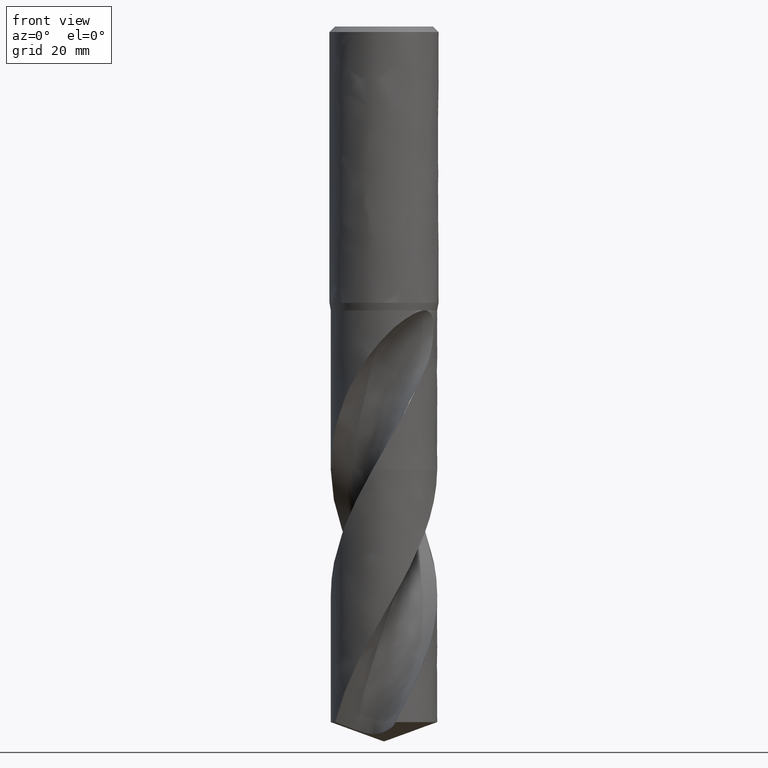
[diagram: clean part render]
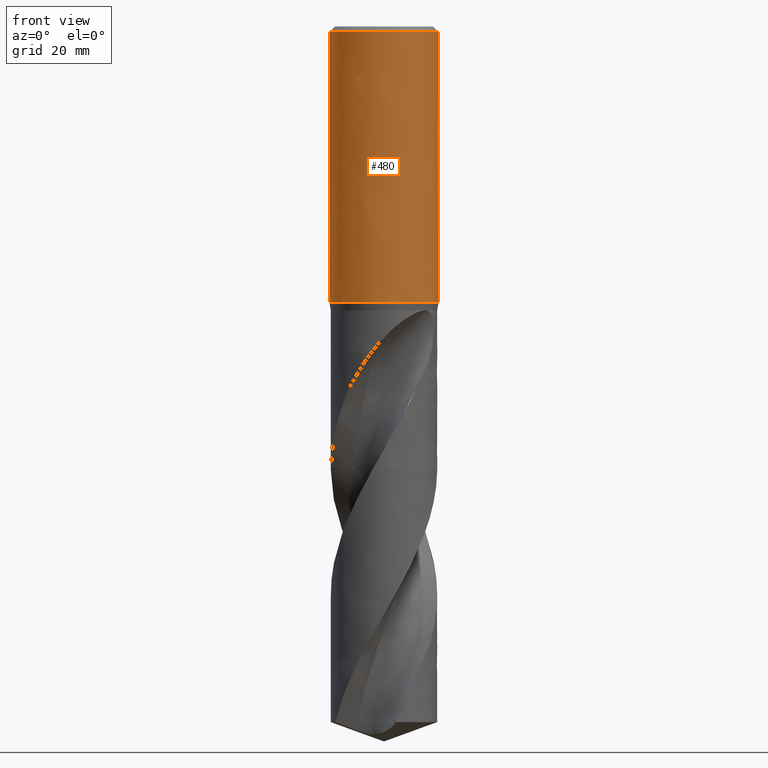
[diagram: same view with one face highlighted and labeled with its STEP entity id]
A machine part, front view. The second image highlights one B-rep face of the part: STEP entity #480.
In plain terms, the highlighted face is a freeform B-spline surface patch.
Its self-contained STEP definition (entity closure, byte-faithful):
#331 = VERTEX_POINT('', #332);
#332 = CARTESIAN_POINT('', (-10., 3.71116966013614E-15, -50.608));
#338 = EDGE_CURVE('', #331, #331, #339, .T.);
#339 = CIRCLE('', #340, 10.);
#340 = AXIS2_PLACEMENT_3D('', #341, #342, #343);
#341 = CARTESIAN_POINT('', (1.89749607702378E-31, 3.09884626056246E-15, -50.608));
#342 = DIRECTION('', (3.74939945665464E-33, 6.12323399573677E-17, -1.));
#343 = DIRECTION('', (-1., 6.12323399573677E-17, 0.));
#429 = VERTEX_POINT('', #430);
#430 = CARTESIAN_POINT('', (-10., 6.73555739531044E-16, -1.));
#446 = EDGE_CURVE('', #429, #429, #447, .T.);
#447 = CIRCLE('', #448, 10.);
#448 = AXIS2_PLACEMENT_3D('', #449, #450, #451);
#449 = CARTESIAN_POINT('', (3.74939945665462E-33, 6.12323399573676E-17, -1.));
#450 = DIRECTION('', (3.74939945665464E-33, 6.12323399573677E-17, -1.));
#451 = DIRECTION('', (-1., 6.12323399573677E-17, 0.));
#480 = ADVANCED_FACE('', (#481, #492), #684, .T.);
#481 = FACE_OUTER_BOUND('', #482, .T.);
#482 = EDGE_LOOP('', (#483, #489, #490, #491));
#483 = ORIENTED_EDGE('', *, *, #484, .T.);
#484 = EDGE_CURVE('', #331, #429, #485, .T.);
#485 = LINE('', #486, #487);
#486 = CARTESIAN_POINT('', (-10., 3.71116966013614E-15, -50.608));
#487 = VECTOR('', #488, 49.608);
#488 = DIRECTION('', (0., -3.0376139206051E-15, 49.608));
#489 = ORIENTED_EDGE('', *, *, #446, .T.);
#490 = ORIENTED_EDGE('', *, *, #484, .F.);
#491 = ORIENTED_EDGE('', *, *, #338, .F.);
#492 = FACE_BOUND('', #493, .T.);
#493 = EDGE_LOOP('', (#494, #586, #594, #678));
#494 = ORIENTED_EDGE('', *, *, #495, .F.);
#495 = EDGE_CURVE('', #496, #498, #500, .T.);
#496 = VERTEX_POINT('', #497);
#497 = CARTESIAN_POINT('', (-5.72363520850167, 8.2, -19.5));
#498 = VERTEX_POINT('', #499);
#499 = CARTESIAN_POINT('', (5.72363520850168, 8.2, -19.5));
#500 = B_SPLINE_CURVE_WITH_KNOTS('', 3, (#501, #502, #503, #504, #505, #506, #507, #508, #509, #510, #511, #512, #513, #514, #515, #516, #517, #518, #519, #520, #521, #522, #523, #524, #525, #526, #527, #528, #529, #530, #531, #532, #533, #534, #535, #536, #537, #538, #539, #540, #541, #542, #543, #544, #545, #546, #547, #548, #549, #550, #551, #552, #553, #554, #555, #556, #557, #558, #559, #560, #561, #562, #563, #564, #565, #566, #567, #568, #569, #570, #571, #572, #573, #574, #575, #576, #577, #578, #579, #580, #581, #582, #583, #584, #585), .UNSPECIFIED., .F., .U., (4, 3, 3, 3, 3, 3, 3, 3, 3, 3, 3, 3, 3, 3, 3, 3, 3, 3, 3, 3, 3, 3, 3, 3, 3, 3, 3, 3, 4), (0., 0.214835230433032, 0.65863517061522, 1.32502682191206, 1.99179739074618, 2.43602472815119, 2.8803816900067, 3.32487669560978, 3.76951701580745, 4.21430821751335, 4.65925360149794, 5.10435369908633, 5.54960590406211, 5.99500431249796, 6.43859379661985, 6.88218328074175, 7.3275816891776, 7.77283389415337, 8.21793399174177, 8.66287937572636, 9.10767057743227, 9.55231089762993, 9.996805903233, 10.4411628650885, 10.8853902024935, 11.5521607713277, 12.2185524226245, 12.6623523628067, 12.8771875932397), .UNSPECIFIED.);
#501 = CARTESIAN_POINT('', (-5.72363520850167, 8.2, -19.5));
#502 = CARTESIAN_POINT('', (-5.6728930158593, 8.23541826833713, -19.4639581082939));
#503 = CARTESIAN_POINT('', (-5.6216485315536, 8.27048663108921, -19.4282722830979));
#504 = CARTESIAN_POINT('', (-5.56990696564429, 8.30518731842138, -19.3929606071275));
#505 = CARTESIAN_POINT('', (-5.46302084734237, 8.37687091952933, -19.3200148446852));
#506 = CARTESIAN_POINT('', (-5.35397695728277, 8.44700929904564, -19.2486415111583));
#507 = CARTESIAN_POINT('', (-5.24283382249235, 8.51543853889692, -19.1790074107901));
#508 = CARTESIAN_POINT('', (-5.07594588399265, 8.61818905779687, -19.0744477231258));
#509 = CARTESIAN_POINT('', (-4.90416694786555, 8.71717927036005, -18.9737145509896));
#510 = CARTESIAN_POINT('', (-4.72778116375841, 8.81181509495133, -18.8774124362456));
#511 = CARTESIAN_POINT('', (-4.55129508477692, 8.90650473050125, -18.7810555630721));
#512 = CARTESIAN_POINT('', (-4.36998064521542, 8.99694870073075, -18.6890191103169));
#513 = CARTESIAN_POINT('', (-4.18425099631693, 9.0825130663171, -18.6019481793212));
#514 = CARTESIAN_POINT('', (-4.06051100048656, 9.13951922717335, -18.5439382885889));
#515 = CARTESIAN_POINT('', (-3.93472153449951, 9.19440218341652, -18.4880889865677));
#516 = CARTESIAN_POINT('', (-3.80704281642226, 9.24696842180873, -18.4345971937591));
#517 = CARTESIAN_POINT('', (-3.67932684200737, 9.29954999890072, -18.3810897921761));
#518 = CARTESIAN_POINT('', (-3.54963587429379, 9.34984793870215, -18.3299062367829));
#519 = CARTESIAN_POINT('', (-3.41816483776649, 9.39766721808433, -18.281244984557));
#520 = CARTESIAN_POINT('', (-3.28665295850209, 9.4455013529838, -18.2325686152469));
#521 = CARTESIAN_POINT('', (-3.15326582728038, 9.49088905793482, -18.1863817511387));
#522 = CARTESIAN_POINT('', (-3.01823609933356, 9.53363786016019, -18.1428802539535));
#523 = CARTESIAN_POINT('', (-2.88316222738079, 9.57640063785162, -18.0993645352306));
#524 = CARTESIAN_POINT('', (-2.74634088441783, 9.61655517912681, -18.0585029771676));
#525 = CARTESIAN_POINT('', (-2.60804447304532, 9.65391651230825, -18.0204838083109));
#526 = CARTESIAN_POINT('', (-2.46970113302018, 9.69129052345442, -17.9824517382635));
#527 = CARTESIAN_POINT('', (-2.32976820522511, 9.72589962244955, -17.947233263262));
#528 = CARTESIAN_POINT('', (-2.18855838357744, 9.75757204440085, -17.915003172531));
#529 = CARTESIAN_POINT('', (-2.04729961300275, 9.78925544527028, -17.8827619095718));
#530 = CARTESIAN_POINT('', (-1.90464019762112, 9.81802723187455, -17.8534835268142));
#531 = CARTESIAN_POINT('', (-1.76093175222065, 9.843735031177, -17.827323080187));
#532 = CARTESIAN_POINT('', (-1.61717333742553, 9.86945176943335, -17.8011535372142));
#533 = CARTESIAN_POINT('', (-1.47223374448968, 9.89212548247928, -17.7780805991926));
#534 = CARTESIAN_POINT('', (-1.32649989319881, 9.91162943381882, -17.7582332341173));
#535 = CARTESIAN_POINT('', (-1.1807162391883, 9.93114005038962, -17.7383790864534));
#536 = CARTESIAN_POINT('', (-1.0339990578409, 9.94749695921058, -17.721734175111));
#537 = CARTESIAN_POINT('', (-0.886764588835756, 9.96060482922533, -17.7083955096779));
#538 = CARTESIAN_POINT('', (-0.73948177377287, 9.97371700335341, -17.6950524643472));
#539 = CARTESIAN_POINT('', (-0.591536976132491, 9.98359060768883, -17.6850050115802));
#540 = CARTESIAN_POINT('', (-0.44336756401062, 9.9901664251995, -17.6783134110665));
#541 = CARTESIAN_POINT('', (-0.295799921556296, 9.9967155359327, -17.671648987567));
#542 = CARTESIAN_POINT('', (-0.147863161373966, 10., -17.6683066926502));
#543 = CARTESIAN_POINT('', (3.06161699786838E-16, 10., -17.6683066926502));
#544 = CARTESIAN_POINT('', (0.147863161373966, 10., -17.6683066926502));
#545 = CARTESIAN_POINT('', (0.295799921556297, 9.9967155359327, -17.671648987567));
#546 = CARTESIAN_POINT('', (0.44336756401062, 9.9901664251995, -17.6783134110665));
#547 = CARTESIAN_POINT('', (0.591536976132492, 9.98359060768883, -17.6850050115802));
#548 = CARTESIAN_POINT('', (0.739481773772872, 9.97371700335341, -17.6950524643472));
#549 = CARTESIAN_POINT('', (0.886764588835757, 9.96060482922533, -17.7083955096779));
#550 = CARTESIAN_POINT('', (1.0339990578409, 9.94749695921058, -17.721734175111));
#551 = CARTESIAN_POINT('', (1.1807162391883, 9.93114005038962, -17.7383790864534));
#552 = CARTESIAN_POINT('', (1.32649989319881, 9.91162943381882, -17.7582332341173));
#553 = CARTESIAN_POINT('', (1.47223374448968, 9.89212548247928, -17.7780805991926));
#554 = CARTESIAN_POINT('', (1.61717333742553, 9.86945176943334, -17.8011535372142));
#555 = CARTESIAN_POINT('', (1.76093175222065, 9.84373503117699, -17.827323080187));
#556 = CARTESIAN_POINT('', (1.90464019762113, 9.81802723187455, -17.8534835268142));
#557 = CARTESIAN_POINT('', (2.04729961300275, 9.78925544527027, -17.8827619095718));
#558 = CARTESIAN_POINT('', (2.18855838357744, 9.75757204440085, -17.915003172531));
#559 = CARTESIAN_POINT('', (2.32976820522511, 9.72589962244954, -17.947233263262));
#560 = CARTESIAN_POINT('', (2.46970113302018, 9.69129052345442, -17.9824517382635));
#561 = CARTESIAN_POINT('', (2.60804447304532, 9.65391651230825, -18.0204838083109));
#562 = CARTESIAN_POINT('', (2.74634088441783, 9.61655517912681, -18.0585029771676));
#563 = CARTESIAN_POINT('', (2.88316222738079, 9.57640063785162, -18.0993645352306));
#564 = CARTESIAN_POINT('', (3.01823609933357, 9.53363786016019, -18.1428802539535));
#565 = CARTESIAN_POINT('', (3.15326582728038, 9.49088905793482, -18.1863817511387));
#566 = CARTESIAN_POINT('', (3.28665295850209, 9.4455013529838, -18.2325686152469));
#567 = CARTESIAN_POINT('', (3.41816483776649, 9.39766721808433, -18.281244984557));
#568 = CARTESIAN_POINT('', (3.54963587429379, 9.34984793870215, -18.3299062367829));
#569 = CARTESIAN_POINT('', (3.67932684200737, 9.29954999890072, -18.3810897921761));
#570 = CARTESIAN_POINT('', (3.80704281642226, 9.24696842180872, -18.4345971937591));
#571 = CARTESIAN_POINT('', (3.93472153449951, 9.19440218341652, -18.4880889865677));
#572 = CARTESIAN_POINT('', (4.06051100048657, 9.13951922717335, -18.5439382885889));
#573 = CARTESIAN_POINT('', (4.18425099631693, 9.0825130663171, -18.6019481793212));
#574 = CARTESIAN_POINT('', (4.36998064521543, 8.99694870073075, -18.6890191103169));
#575 = CARTESIAN_POINT('', (4.55129508477692, 8.90650473050125, -18.7810555630721));
#576 = CARTESIAN_POINT('', (4.72778116375841, 8.81181509495132, -18.8774124362456));
#577 = CARTESIAN_POINT('', (4.90416694786556, 8.71717927036005, -18.9737145509896));
#578 = CARTESIAN_POINT('', (5.07594588399265, 8.61818905779687, -19.0744477231258));
#579 = CARTESIAN_POINT('', (5.24283382249235, 8.51543853889692, -19.1790074107901));
#580 = CARTESIAN_POINT('', (5.35397695728278, 8.44700929904563, -19.2486415111583));
#581 = CARTESIAN_POINT('', (5.46302084734238, 8.37687091952933, -19.3200148446852));
#582 = CARTESIAN_POINT('', (5.56990696564429, 8.30518731842138, -19.3929606071275));
#583 = CARTESIAN_POINT('', (5.6216485315536, 8.27048663108921, -19.4282722830979));
#584 = CARTESIAN_POINT('', (5.67289301585931, 8.23541826833713, -19.4639581082939));
#585 = CARTESIAN_POINT('', (5.72363520850168, 8.2, -19.5));
#586 = ORIENTED_EDGE('', *, *, #587, .T.);
#587 = EDGE_CURVE('', #496, #588, #590, .T.);
#588 = VERTEX_POINT('', #589);
#589 = CARTESIAN_POINT('', (-5.72363520850167, 8.2, -30.5));
#590 = LINE('', #591, #592);
#591 = CARTESIAN_POINT('', (-5.72363520850167, 8.2, -19.5));
#592 = VECTOR('', #593, 11.);
#593 = DIRECTION('', (8.88178419700125E-16, 1.77635683940025E-15, -11.));
#594 = ORIENTED_EDGE('', *, *, #595, .T.);
#595 = EDGE_CURVE('', #588, #596, #598, .T.);
#596 = VERTEX_POINT('', #597);
#597 = CARTESIAN_POINT('', (5.72363520850168, 8.2, -30.5));
#598 = B_SPLINE_CURVE_WITH_KNOTS('', 3, (#599, #600, #601, #602, #603, #604, #605, #606, #607, #608, #609, #610, #611, #612, #613, #614, #615, #616, #617, #618, #619, #620, #621, #622, #623, #624, #625, #626, #627, #628, #629, #630, #631, #632, #633, #634, #635, #636, #637, #638, #639, #640, #641, #642, #643, #644, #645, #646, #647, #648, #649, #650, #651, #652, #653, #654, #655, #656, #657, #658, #659, #660, #661, #662, #663, #664, #665, #666, #667, #668, #669, #670, #671, #672, #673, #674, #675, #676, #677), .UNSPECIFIED., .F., .U., (4, 3, 3, 3, 3, 3, 3, 3, 3, 3, 3, 3, 3, 3, 3, 3, 3, 3, 3, 3, 3, 3, 3, 3, 3, 3, 4), (0., 0.6645444639048, 1.32885270382997, 1.99289095594486, 2.65662214450587, 3.3200072543473, 3.98300769216711, 4.4252240978459, 4.86730562379065, 5.30924915926863, 5.75105380764403, 6.04585760121953, 6.43827284874514, 6.88186233286704, 7.32726074130289, 7.77251294627867, 8.21761304386707, 8.66255842785166, 9.10734962955756, 9.55198994975523, 9.9964849553583, 10.4408419172138, 10.8850692546188, 11.5518398234529, 12.2182314747498, 12.662031414932, 12.876866645365), .UNSPECIFIED.);
#599 = CARTESIAN_POINT('', (-5.72363520850167, 8.2, -30.5));
#600 = CARTESIAN_POINT('', (-5.56667564866175, 8.30955844670863, -30.6114874853332));
#601 = CARTESIAN_POINT('', (-5.40484892792947, 8.41580769705523, -30.7196075079837));
#602 = CARTESIAN_POINT('', (-5.23833789562522, 8.51820498058469, -30.8238077407236));
#603 = CARTESIAN_POINT('', (-5.07188605258646, 8.62056586520463, -30.927970933664));
#604 = CARTESIAN_POINT('', (-4.90057441629894, 8.71918562307263, -31.0283271283636));
#605 = CARTESIAN_POINT('', (-4.72468531328166, 8.81347540363404, -31.1242771061446));
#606 = CARTESIAN_POINT('', (-4.54886769502239, 8.90772686299175, -31.2201880879854));
#607 = CARTESIAN_POINT('', (-4.36826243182228, 8.99776422425773, -31.3118107724534));
#608 = CARTESIAN_POINT('', (-4.18327814629092, 9.08296118844328, -31.3985078330674));
#609 = CARTESIAN_POINT('', (-3.99837940091023, 9.16811875597883, -31.4851648033591));
#610 = CARTESIAN_POINT('', (-3.80885174162384, 9.24855459129885, -31.5670169040407));
#611 = CARTESIAN_POINT('', (-3.61525775975745, 9.32362114902338, -31.6434051881462));
#612 = CARTESIAN_POINT('', (-3.42176472049933, 9.39864856599541, -31.7197536423325));
#613 = CARTESIAN_POINT('', (-3.22391153623087, 9.4684247025341, -31.7907583547273));
#614 = CARTESIAN_POINT('', (-3.02243921260889, 9.53230618507856, -31.8557646236386));
#615 = CARTESIAN_POINT('', (-2.82108371519371, 9.59615062515904, -31.9207331978646));
#616 = CARTESIAN_POINT('', (-2.61576889306522, 9.6542130116916, -31.9798179116538));
#617 = CARTESIAN_POINT('', (-2.40742937263396, 9.70588913061456, -32.0324039123099));
#618 = CARTESIAN_POINT('', (-2.26846844797919, 9.74035672108055, -32.067478387186));
#619 = CARTESIAN_POINT('', (-2.12802315090075, 9.77202092020713, -32.0997001103096));
#620 = CARTESIAN_POINT('', (-1.98641919052356, 9.80072134077486, -32.1289058704608));
#621 = CARTESIAN_POINT('', (-1.84485842054879, 9.82941300747222, -32.1581027226087));
#622 = CARTESIAN_POINT('', (-1.70201510139211, 9.85516753283007, -32.1843107180153));
#623 = CARTESIAN_POINT('', (-1.55825083801881, 9.87784664417371, -32.2073891493846));
#624 = CARTESIAN_POINT('', (-1.41453144894278, 9.90051867650369, -32.2304603770973));
#625 = CARTESIAN_POINT('', (-1.26975953913246, 9.92013769414615, -32.2504248344931));
#626 = CARTESIAN_POINT('', (-1.12432787009358, 9.93659332168379, -32.2671702027315));
#627 = CARTESIAN_POINT('', (-0.978941905045164, 9.95304377780417, -32.2839103084973));
#628 = CARTESIAN_POINT('', (-0.832758317190169, 9.96634819167268, -32.2974489784091));
#629 = CARTESIAN_POINT('', (-0.686194106916975, 9.97642910302241, -32.3077073883264));
#630 = CARTESIAN_POINT('', (-0.588395938994074, 9.98315581112638, -32.3145525362234));
#631 = CARTESIAN_POINT('', (-0.490375752672161, 9.98845197443607, -32.3199419511617));
#632 = CARTESIAN_POINT('', (-0.392261586751963, 9.99230358063439, -32.323861374104));
#633 = CARTESIAN_POINT('', (-0.261661182196849, 9.99743047870227, -32.3290785434809));
#634 = CARTESIAN_POINT('', (-0.130805082508537, 10., -32.3316933073498));
#635 = CARTESIAN_POINT('', (-5.82016719913287E-16, 10., -32.3316933073498));
#636 = CARTESIAN_POINT('', (0.147863161373966, 10., -32.3316933073498));
#637 = CARTESIAN_POINT('', (0.295799921556296, 9.9967155359327, -32.328351012433));
#638 = CARTESIAN_POINT('', (0.44336756401062, 9.9901664251995, -32.3216865889335));
#639 = CARTESIAN_POINT('', (0.591536976132492, 9.98359060768883, -32.3149949884198));
#640 = CARTESIAN_POINT('', (0.739481773772872, 9.97371700335341, -32.3049475356528));
#641 = CARTESIAN_POINT('', (0.886764588835757, 9.96060482922533, -32.2916044903221));
#642 = CARTESIAN_POINT('', (1.0339990578409, 9.94749695921058, -32.278265824889));
#643 = CARTESIAN_POINT('', (1.1807162391883, 9.93114005038962, -32.2616209135466));
#644 = CARTESIAN_POINT('', (1.32649989319881, 9.91162943381882, -32.2417667658827));
#645 = CARTESIAN_POINT('', (1.47223374448968, 9.89212548247928, -32.2219194008074));
#646 = CARTESIAN_POINT('', (1.61717333742553, 9.86945176943335, -32.1988464627858));
#647 = CARTESIAN_POINT('', (1.76093175222065, 9.843735031177, -32.172676919813));
#648 = CARTESIAN_POINT('', (1.90464019762113, 9.81802723187455, -32.1465164731858));
#649 = CARTESIAN_POINT('', (2.04729961300275, 9.78925544527028, -32.1172380904282));
#650 = CARTESIAN_POINT('', (2.18855838357744, 9.75757204440085, -32.084996827469));
#651 = CARTESIAN_POINT('', (2.32976820522511, 9.72589962244955, -32.052766736738));
#652 = CARTESIAN_POINT('', (2.46970113302018, 9.69129052345441, -32.0175482617365));
#653 = CARTESIAN_POINT('', (2.60804447304532, 9.65391651230824, -31.9795161916891));
#654 = CARTESIAN_POINT('', (2.74634088441783, 9.61655517912681, -31.9414970228324));
#655 = CARTESIAN_POINT('', (2.88316222738079, 9.57640063785162, -31.9006354647694));
#656 = CARTESIAN_POINT('', (3.01823609933356, 9.53363786016019, -31.8571197460465));
#657 = CARTESIAN_POINT('', (3.15326582728038, 9.49088905793482, -31.8136182488613));
#658 = CARTESIAN_POINT('', (3.28665295850209, 9.4455013529838, -31.7674313847531));
#659 = CARTESIAN_POINT('', (3.4181648377665, 9.39766721808433, -31.718755015443));
#660 = CARTESIAN_POINT('', (3.54963587429379, 9.34984793870215, -31.6700937632171));
#661 = CARTESIAN_POINT('', (3.67932684200737, 9.29954999890072, -31.6189102078239));
#662 = CARTESIAN_POINT('', (3.80704281642226, 9.24696842180873, -31.5654028062409));
#663 = CARTESIAN_POINT('', (3.93472153449951, 9.19440218341652, -31.5119110134323));
#664 = CARTESIAN_POINT('', (4.06051100048657, 9.13951922717335, -31.4560617114111));
#665 = CARTESIAN_POINT('', (4.18425099631693, 9.0825130663171, -31.3980518206788));
#666 = CARTESIAN_POINT('', (4.36998064521543, 8.99694870073075, -31.3109808896832));
#667 = CARTESIAN_POINT('', (4.55129508477692, 8.90650473050125, -31.2189444369279));
#668 = CARTESIAN_POINT('', (4.72778116375841, 8.81181509495132, -31.1225875637544));
#669 = CARTESIAN_POINT('', (4.90416694786555, 8.71717927036005, -31.0262854490104));
#670 = CARTESIAN_POINT('', (5.07594588399265, 8.61818905779687, -30.9255522768742));
#671 = CARTESIAN_POINT('', (5.24283382249235, 8.51543853889692, -30.8209925892099));
#672 = CARTESIAN_POINT('', (5.35397695728277, 8.44700929904564, -30.7513584888417));
#673 = CARTESIAN_POINT('', (5.46302084734237, 8.37687091952933, -30.6799851553148));
#674 = CARTESIAN_POINT('', (5.56990696564429, 8.30518731842138, -30.6070393928725));
#675 = CARTESIAN_POINT('', (5.6216485315536, 8.27048663108921, -30.5717277169021));
#676 = CARTESIAN_POINT('', (5.67289301585931, 8.23541826833713, -30.5360418917061));
#677 = CARTESIAN_POINT('', (5.72363520850168, 8.2, -30.5));
#678 = ORIENTED_EDGE('', *, *, #679, .F.);
#679 = EDGE_CURVE('', #498, #596, #680, .T.);
#680 = LINE('', #681, #682);
#681 = CARTESIAN_POINT('', (5.72363520850168, 8.2, -19.5));
#682 = VECTOR('', #683, 11.);
#683 = DIRECTION('', (1.77635683940025E-15, 1.77635683940025E-15, -11.));
#684 = (
   BOUNDED_SURFACE ()
   B_SPLINE_SURFACE (1, 2, ((#685, #686, #687, #688, #689, #690, #691, #692, #693), (#694, #695, #696, #697, #698, #699, #700, #701, #702)), .UNSPECIFIED., .F., .T., .U.)
   B_SPLINE_SURFACE_WITH_KNOTS ((2, 2), (3, 2, 2, 2, 3), (0., 1.), (0., 15.707963267949, 31.4159265358979, 47.1238898038469, 62.8318530717959), .UNSPECIFIED.)
   GEOMETRIC_REPRESENTATION_ITEM ()
   RATIONAL_B_SPLINE_SURFACE (((1., 0.707106781186548, 1., 0.707106781186548, 1., 0.707106781186548, 1., 0.707106781186548, 1.), (1., 0.707106781186548, 1., 0.707106781186548, 1., 0.707106781186548, 1., 0.707106781186548, 1.)))
   REPRESENTATION_ITEM ('')
   SURFACE ()
);
#685 = CARTESIAN_POINT('', (-10., 3.71116966013614E-15, -50.608));
#686 = CARTESIAN_POINT('', (-10., 10., -50.608));
#687 = CARTESIAN_POINT('', (1.97215226305253E-31, 10., -50.608));
#688 = CARTESIAN_POINT('', (10., 10., -50.608));
#689 = CARTESIAN_POINT('', (10., 3.71116966013614E-15, -50.608));
#690 = CARTESIAN_POINT('', (10., -9.99999999999999, -50.608));
#691 = CARTESIAN_POINT('', (1.22464679914735E-15, -10., -50.608));
#692 = CARTESIAN_POINT('', (-10., -10., -50.608));
#693 = CARTESIAN_POINT('', (-10., 3.71116966013614E-15, -50.608));
#694 = CARTESIAN_POINT('', (-10., 6.73555739531044E-16, -1.));
#695 = CARTESIAN_POINT('', (-10., 10., -0.999999999999999));
#696 = CARTESIAN_POINT('', (0., 10., -0.999999999999999));
#697 = CARTESIAN_POINT('', (10., 10., -0.999999999999999));
#698 = CARTESIAN_POINT('', (10., 6.73555739531044E-16, -1.));
#699 = CARTESIAN_POINT('', (10., -10., -1.));
#700 = CARTESIAN_POINT('', (1.22464679914735E-15, -10., -1.));
#701 = CARTESIAN_POINT('', (-10., -10., -1.));
#702 = CARTESIAN_POINT('', (-10., 6.73555739531044E-16, -1.));